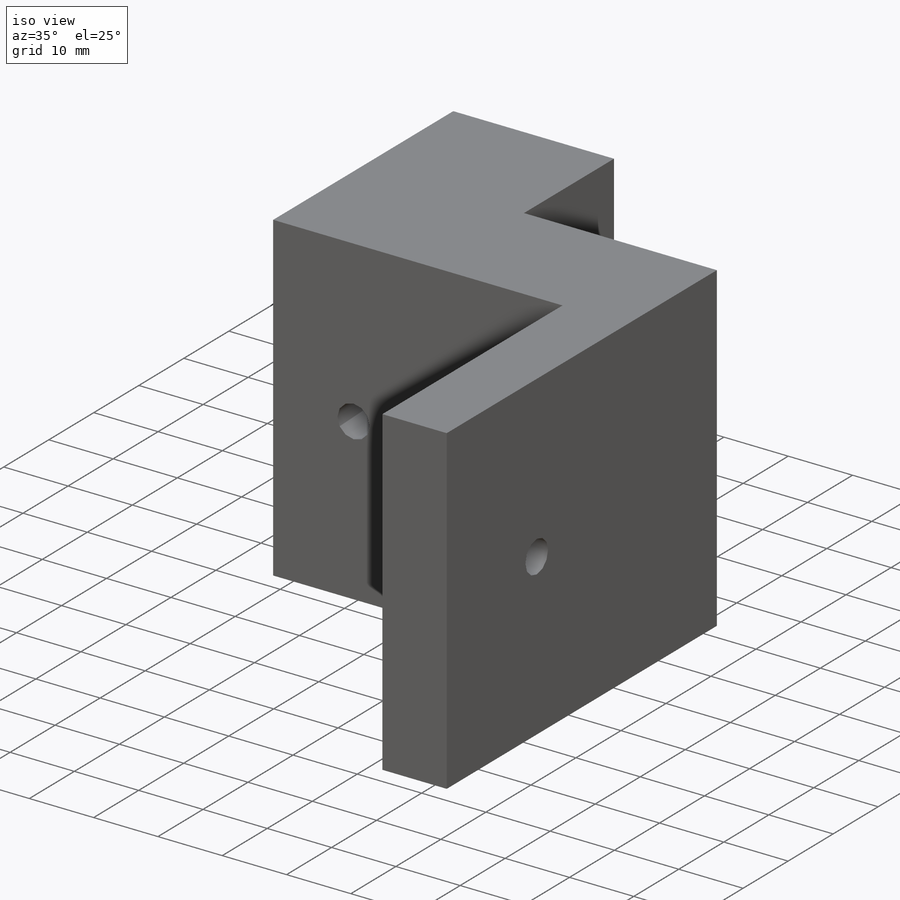
[diagram: iso view]
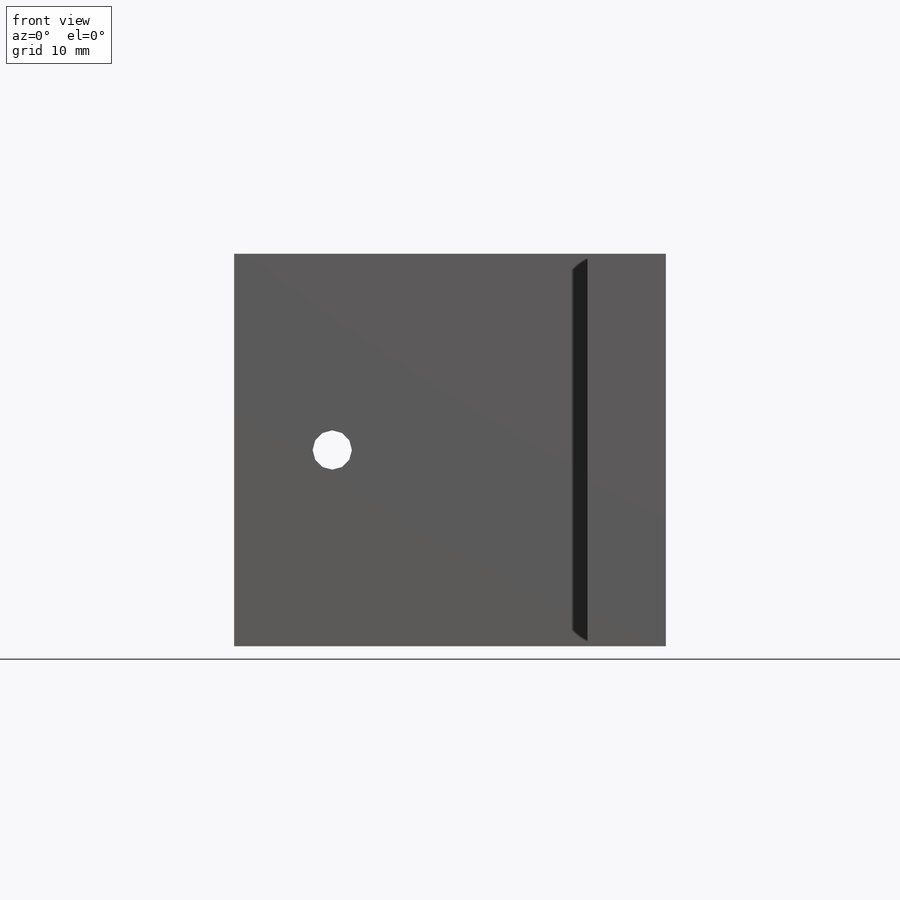
[diagram: front view]
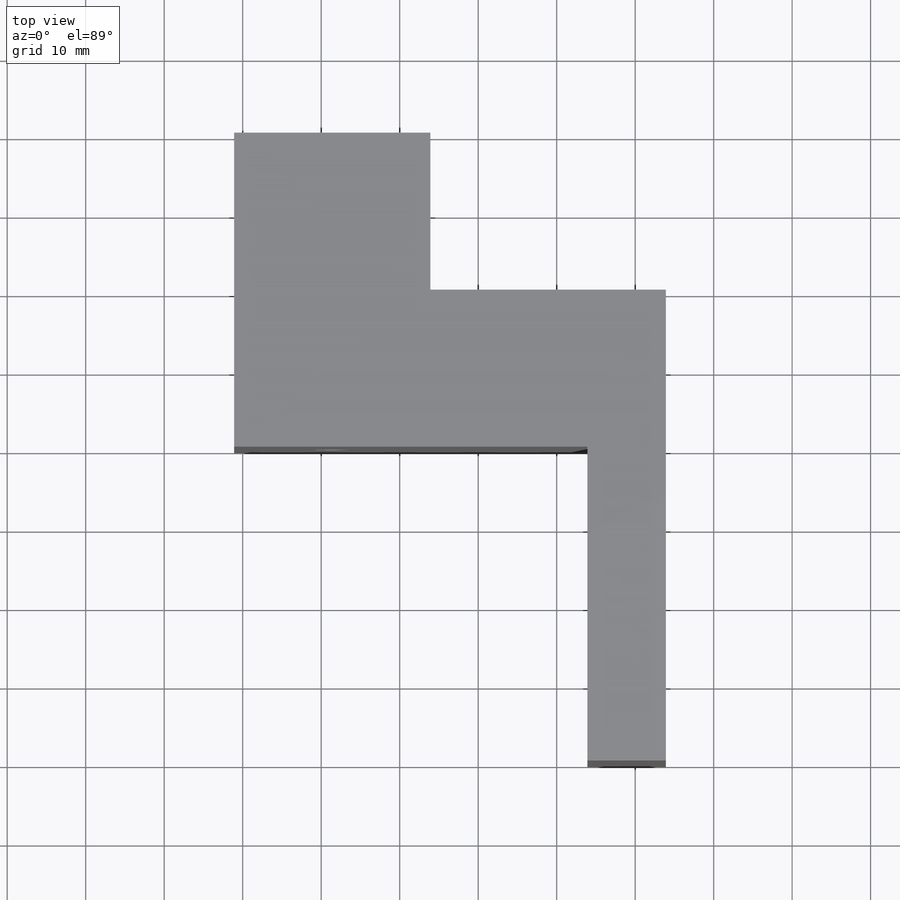
[diagram: top view]
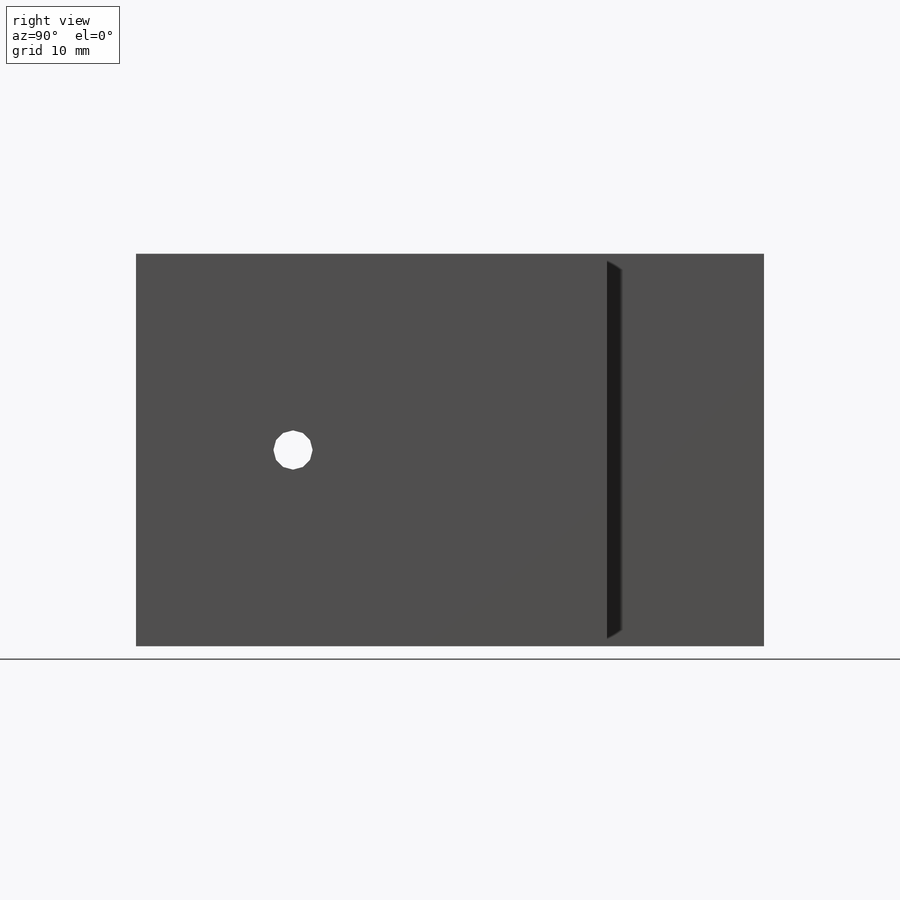
[diagram: right view]
SOLIDWORKS PART (.sldprt)
format: sldprt  version: not decoded by parser v0  size: 238,080 bytes
history: native  units: mm
features: sketch x8, plane x3, extrude x3, hole x2, material x1 (+9 scaffold rows collapsed)
feature tree (26):
  scaffold x9  (default folders/planes/origin — collapsed)
  material  "Material <sin especificar>"
  plane  "Alzado"
  plane  "Planta"
  plane  "Vista lateral"
  sketch  "Croquis1"  dims[D1=25.0mm]
  extrude  "Saliente-Extruir1"  Depth=20mm
  sketch  "Croquis2"  dims[D1=45.0mm D2=50.0mm]
  extrude  "Saliente-Extruir2"  Depth=20mm
  sketch  "Croquis5"  dims[D1=60.0mm D2=60.0mm]
  extrude  "Saliente-Extruir3"  Depth=10mm
  hole  "Perforador para roscar para macho de roscar para M6x1.01"  Depth=11mm  [1 undecoded]
  sketch  "Croquis3D2"  dims[c1.D1=20.0mm c1.D2=25.0mm c1.D3=40.0mm c2.D3=~40.406368mm]
  sketch  "Croquis6"  dims[hole-wizard template sketch: 46 standard entries collapsed; hole parameters kept: c15.Diámetro de taladro=5.0mm c15.Profundidad de taladro=11.0mm c15.D3=~14.816244mm c15.Ángulo de perforador=118.0deg]
  sketch  "Croquis7"  dims[D1=~170.198071mm]
  hole  "Perforador para roscar para macho de roscar para M6x1.02"  Depth=80.000025mm  [1 undecoded]
  sketch  "Croquis3D3"  dims[D1=12.5mm D2=25.0mm]
  sketch  "Croquis10"  dims[hole-wizard template sketch: 59 standard entries collapsed; hole parameters kept: c18.Diámetro de taladro hasta el siguiente=5.0mm c18.Profundidad de taladro hasta el siguiente=~80.000025mm]
decode coverage: 13 of 13 modeling features carry decoded parameters
note: ~ marks probable driven/reference dimensions
note: 2 parameter values undecoded
note: suppression state not decoded; provenance and decode notes live in map.json
